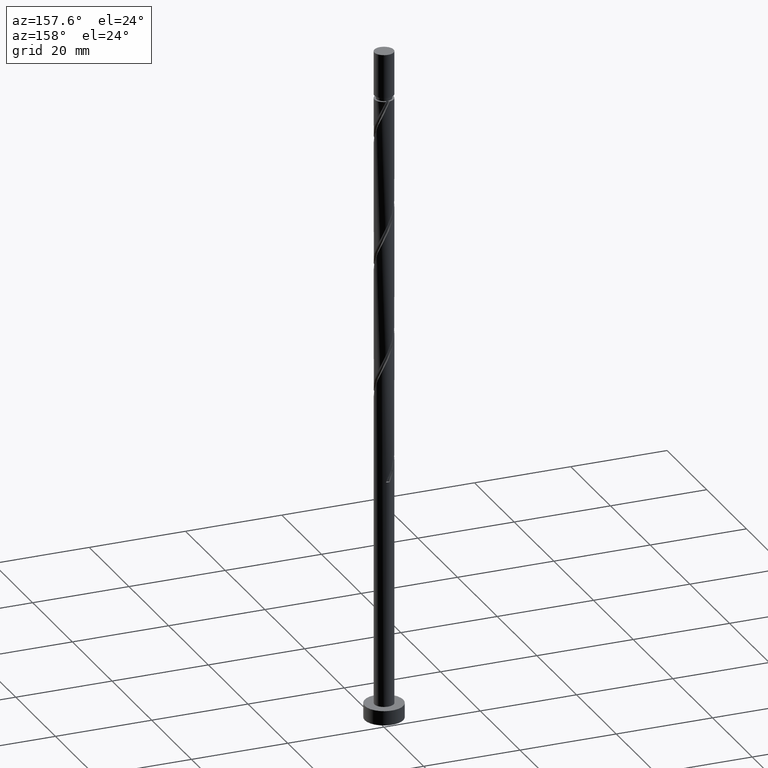
[diagram: clean part render]
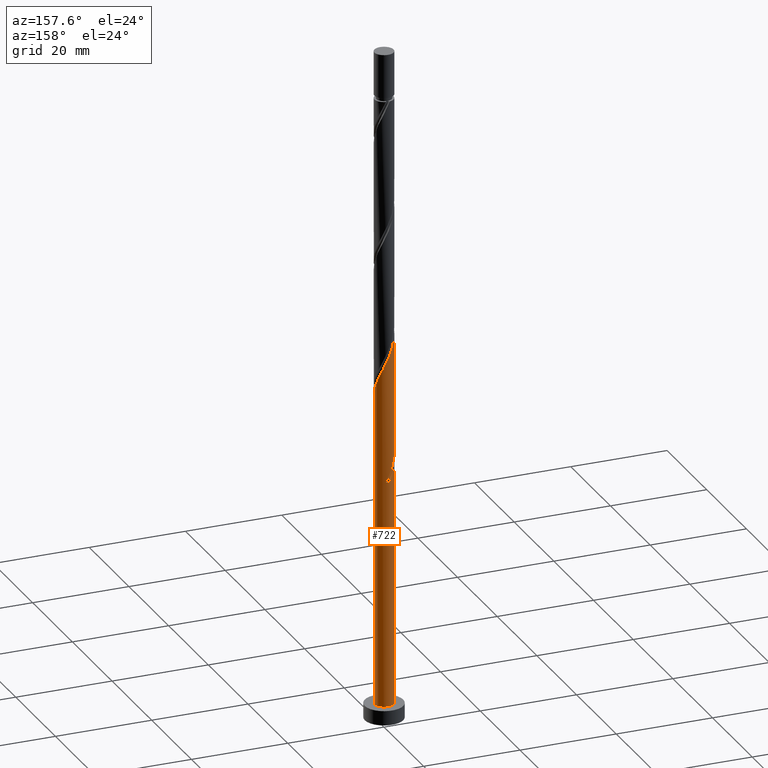
[diagram: same view with one face highlighted and labeled with its STEP entity id]
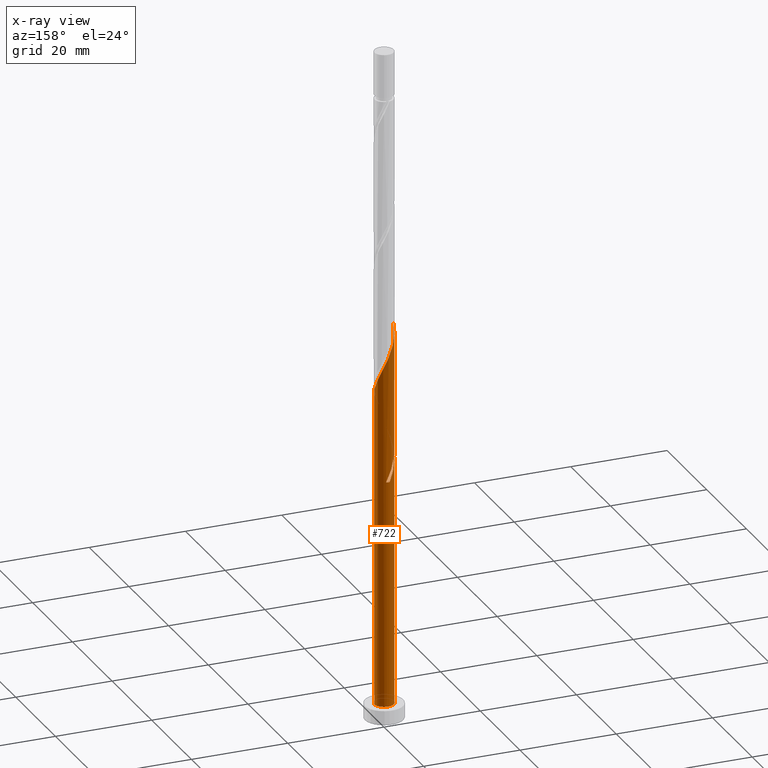
[diagram: x-ray of the same camera — body ghosted, the highlighted face saturated]
A machine part, auxiliary view. The second image highlights one B-rep face of the part: STEP entity #722.
The next image is the same camera in x-ray: the body ghosted, the highlighted face saturated — about 0% of this face is hidden behind the body in this view.
In plain terms, the highlighted cylindrical surface (edge-blend (fillet) strip) has radius 2 mm, axis along (-0, -0, -1).
Its self-contained STEP definition (entity closure, byte-faithful):
#4 =( BOUNDED_CURVE ( )  B_SPLINE_CURVE ( 2, ( #318, #723, #715, #965, #76, #311, #577, #948, #1609, #584, #1106, #68, #184, #1100, #192 ),
 .UNSPECIFIED., .F., .F. ) 
 B_SPLINE_CURVE_WITH_KNOTS ( ( 3, 2, 2, 2, 2, 2, 2, 3 ),
 ( 0.9295252162417513286, 0.9318181818181817677, 0.9431818181818182323, 0.9545454545454545858, 0.9659090909090909394, 0.9772727272727272929, 0.9886363636363636465, 1.000000000000000000 ),
 .UNSPECIFIED. ) 
 CURVE ( )  GEOMETRIC_REPRESENTATION_ITEM ( )  RATIONAL_B_SPLINE_CURVE ( ( 0.9061101570135567940, 0.9072237824201390133, 0.9090909090909164991, 0.8998376744372188485, 0.9090909090909164991, 0.8998376744372188485, 0.9090909090909164991, 0.8998376744372188485, 0.9090909090909164991, 0.8998376744372188485, 0.9090909090909164991, 0.8998376744372188485, 0.9090909090909164991, 0.8998376744372188485, 0.9090909090909164991 ) ) 
 REPRESENTATION_ITEM ( '' )  );
#25 = EDGE_LOOP ( 'NONE', ( #879, #756, #924, #118, #889, #501, #401, #1654 ) ) ;
#60 = DIRECTION ( 'NONE',  ( -1.000000000000000000, 0.000000000000000000, 0.000000000000000000 ) ) ;
#68 = CARTESIAN_POINT ( 'NONE',  ( -0.4568343776401055933, 1.968245701812301407, 51.96888811070799363 ) ) ;
#76 = CARTESIAN_POINT ( 'NONE',  ( -1.883409435608316418, 0.6728810428757542317, 56.21131235313221453 ) ) ;
#79 = CARTESIAN_POINT ( 'NONE',  ( -2.000000000000000444, 1.884559408640555319E-15, 57.66682743849373338 ) ) ;
#94 = CARTESIAN_POINT ( 'NONE',  ( 1.980155124014553403, 0.4020876473299550558, 70.15070629252615220 ) ) ;
#102 = CARTESIAN_POINT ( 'NONE',  ( -2.000000000000004441, 0.2290578547702427359, 82.14862519358732129 ) ) ;
#105 = AXIS2_PLACEMENT_3D ( 'NONE', #1426, #519, #1142 ) ;
#118 = ORIENTED_EDGE ( 'NONE', *, *, #565, .F. ) ;
#184 = CARTESIAN_POINT ( 'NONE',  ( -0.1703224295138024702, 1.992734370156875157, 51.36282750464737745 ) ) ;
#192 = CARTESIAN_POINT ( 'NONE',  ( 0.3979949748426487299, 1.959999999999999964, 50.15070629252617351 ) ) ;
#212 = CARTESIAN_POINT ( 'NONE',  ( -1.188337955536408641, 1.634179211325360814, 51.96888811070798653 ) ) ;
#217 = CARTESIAN_POINT ( 'NONE',  ( -1.948211798543802997, 0.4521844623765087778, 81.66585780767769620 ) ) ;
#220 =( BOUNDED_CURVE ( )  B_SPLINE_CURVE ( 2, ( #337, #853, #1236, #212, #727, #1620, #468, #1496, #860, #669, #693 ),
 .UNSPECIFIED., .F., .F. ) 
 B_SPLINE_CURVE_WITH_KNOTS ( ( 3, 2, 2, 2, 2, 3 ),
 ( 0.000000000000000000, 0.01136363636363635354, 0.02272727272727270709, 0.03409090909090906063, 0.04545454545454541417, 0.05452521624175125231 ),
 .UNSPECIFIED. ) 
 CURVE ( )  GEOMETRIC_REPRESENTATION_ITEM ( )  RATIONAL_B_SPLINE_CURVE ( ( 0.9090909090909219392, 0.8998376744372241776, 0.9090909090909219392, 0.8998376744372241776, 0.9090909090909219392, 0.8998376744372241776, 0.9090909090909219392, 0.8998376744372241776, 0.9090909090909219392, 0.9017048011080017744, 0.9061101570135622341 ) ) 
 REPRESENTATION_ITEM ( '' )  );
#224 = CARTESIAN_POINT ( 'NONE',  ( -1.741900447066340618, 0.9827425057002951991, 80.45373659555643542 ) ) ;
#251 = VERTEX_POINT ( 'NONE', #991 ) ;
#277 = VERTEX_POINT ( 'NONE', #1245 ) ;
#300 = DIRECTION ( 'NONE',  ( -0.000000000000000000, -0.000000000000000000, -1.000000000000000000 ) ) ;
#311 = CARTESIAN_POINT ( 'NONE',  ( -1.786663747202082320, 0.9436744384215540737, 55.60525174707161966 ) ) ;
#318 = CARTESIAN_POINT ( 'NONE',  ( -2.000000000000000444, 1.884559408640555319E-15, 57.66682743849373338 ) ) ;
#337 = CARTESIAN_POINT ( 'NONE',  ( -0.3979949748426480083, 1.960000000000002185, 50.15070629252618062 ) ) ;
#344 = CARTESIAN_POINT ( 'NONE',  ( 2.000000000000002220, 0.05755105304764610019, 69.42334981794350313 ) ) ;
#391 = EDGE_CURVE ( 'NONE', #1026, #251, #1032, .T. ) ;
#401 = ORIENTED_EDGE ( 'NONE', *, *, #844, .F. ) ;
#416 = CARTESIAN_POINT ( 'NONE',  ( -2.000000000000000000, 0.000000000000000000, 3.000000000000000000 ) ) ;
#422 = CARTESIAN_POINT ( 'NONE',  ( -0.3979949748426480083, 1.960000000000002185, 50.15070629252617351 ) ) ;
#468 = CARTESIAN_POINT ( 'NONE',  ( -1.741900447066340618, 0.9827425057002951991, 53.78706992888979244 ) ) ;
#475 = CARTESIAN_POINT ( 'NONE',  ( 0.1703224295138031641, 1.992734370156877821, 75.60525174707161966 ) ) ;
#485 = CARTESIAN_POINT ( 'NONE',  ( 1.220637884402355988, 1.584311571365226046, 73.18100932282916915 ) ) ;
#494 = EDGE_CURVE ( 'NONE', #500, #1384, #220, .T. ) ;
#495 = CARTESIAN_POINT ( 'NONE',  ( -0.1161895186125001117, 2.017223038501450461, 76.21131235313224295 ) ) ;
#500 = VERTEX_POINT ( 'NONE', #422 ) ;
#501 = ORIENTED_EDGE ( 'NONE', *, *, #970, .T. ) ;
#514 = VERTEX_POINT ( 'NONE', #416 ) ;
#519 = DIRECTION ( 'NONE',  ( -0.000000000000000000, -0.000000000000000000, -1.000000000000000000 ) ) ;
#565 = EDGE_CURVE ( 'NONE', #1384, #514, #1190, .T. ) ;
#577 = CARTESIAN_POINT ( 'NONE',  ( -1.617545623245911779, 1.176242388590887256, 54.99919114101101769 ) ) ;
#584 = CARTESIAN_POINT ( 'NONE',  ( -0.9928482695149674075, 1.759812803970227879, 53.18100932282921178 ) ) ;
#594 = CARTESIAN_POINT ( 'NONE',  ( -1.600603406160406639, 1.233189980288574183, 79.84767598949586898 ) ) ;
#603 = CARTESIAN_POINT ( 'NONE',  ( 1.786663747202085206, 0.9436744384215541848, 71.36282750464738456 ) ) ;
#626 = CARTESIAN_POINT ( 'NONE',  ( 1.996690616564942733, 0.1150068768444765244, 69.54464568646558575 ) ) ;
#628 = DIRECTION ( 'NONE',  ( 1.000000000000000000, 0.000000000000000000, 0.000000000000000000 ) ) ;
#630 = CARTESIAN_POINT ( 'NONE',  ( 2.000000000000000000, 2.449293598294706414E-16, 3.000000000000000000 ) ) ;
#669 = CARTESIAN_POINT ( 'NONE',  ( -2.000000000000002665, 0.2290578547702473156, 55.48195852692062857 ) ) ;
#681 = VECTOR ( 'NONE', #1340, 1000.000000000000000 ) ;
#693 = CARTESIAN_POINT ( 'NONE',  ( -2.000000000000002665, -1.376027504721667048E-15, 55.96791847989193514 ) ) ;
#699 = LINE ( 'NONE', #1209, #1187 ) ;
#715 = CARTESIAN_POINT ( 'NONE',  ( -1.996690616564939846, 0.1150068768444770934, 57.42343356525345399 ) ) ;
#718 = CARTESIAN_POINT ( 'NONE',  ( 2.000000000000000000, 2.449293598294706414E-16, 140.0000000000000000 ) ) ;
#722 = ADVANCED_FACE ( 'NONE', ( #1536 ), #1010, .T. ) ;
#723 = CARTESIAN_POINT ( 'NONE',  ( -2.000000000000000444, 0.05755105304764599611, 57.54472943377551530 ) ) ;
#727 = CARTESIAN_POINT ( 'NONE',  ( -1.394470680848407307, 1.433684595806968165, 52.57494871676860271 ) ) ;
#739 = CARTESIAN_POINT ( 'NONE',  ( -1.883197487972274153, 0.7322950311120157707, 81.05979720161708713 ) ) ;
#740 = DIRECTION ( 'NONE',  ( 0.000000000000000000, 0.000000000000000000, 1.000000000000000000 ) ) ;
#751 = CARTESIAN_POINT ( 'NONE',  ( -0.6798004310727967514, 1.902776961498554353, 77.42343356525344689 ) ) ;
#756 = ORIENTED_EDGE ( 'NONE', *, *, #1449, .T. ) ;
#776 = VERTEX_POINT ( 'NONE', #630 ) ;
#829 = CIRCLE ( 'NONE', #1455, 2.000000000000000000 ) ;
#844 = EDGE_CURVE ( 'NONE', #1411, #277, #4, .T. ) ;
#853 = CARTESIAN_POINT ( 'NONE',  ( -0.6798004310727967514, 1.902776961498554353, 50.75676689858678259 ) ) ;
#860 = CARTESIAN_POINT ( 'NONE',  ( -1.948211798543802997, 0.4521844623765087778, 54.99919114101103190 ) ) ;
#875 = CARTESIAN_POINT ( 'NONE',  ( 0.4568343776401065925, 1.968245701812303405, 74.99919114101103901 ) ) ;
#879 = ORIENTED_EDGE ( 'NONE', *, *, #391, .F. ) ;
#889 = ORIENTED_EDGE ( 'NONE', *, *, #494, .F. ) ;
#924 = ORIENTED_EDGE ( 'NONE', *, *, #1271, .T. ) ;
#948 = CARTESIAN_POINT ( 'NONE',  ( -1.448427499289741460, 1.408810338760219993, 54.39313053495040862 ) ) ;
#962 = AXIS2_PLACEMENT_3D ( 'NONE', #1212, #1592, #60 ) ;
#965 = CARTESIAN_POINT ( 'NONE',  ( -1.980155124014551182, 0.4020876473299552778, 56.81737295919283781 ) ) ;
#970 = EDGE_CURVE ( 'NONE', #500, #277, #1476, .T. ) ;
#971 = DIRECTION ( 'NONE',  ( -0.000000000000000000, -0.000000000000000000, -1.000000000000000000 ) ) ;
#991 = CARTESIAN_POINT ( 'NONE',  ( -2.000000000000002665, -1.376027504721667048E-15, 82.63458514655862075 ) ) ;
#997 = CARTESIAN_POINT ( 'NONE',  ( -1.188337955536408641, 1.634179211325360814, 78.63555477737463661 ) ) ;
#1010 = CYLINDRICAL_SURFACE ( 'NONE', #105, 2.000000000000000000 ) ;
#1026 = VERTEX_POINT ( 'NONE', #1462 ) ;
#1032 =( BOUNDED_CURVE ( )  B_SPLINE_CURVE ( 2, ( #1373, #344, #626, #94, #1638, #603, #1109, #1627, #485, #1647, #1137, #875, #475, #495, #1380, #751, #1366, #997, #1249, #594, #224, #739, #217, #102, #1488 ),
 .UNSPECIFIED., .F., .F. ) 
 B_SPLINE_CURVE_WITH_KNOTS ( ( 3, 2, 2, 2, 2, 2, 2, 2, 2, 2, 2, 2, 3 ),
 ( 0.1795252162417513564, 0.1818181818181817677, 0.1931818181818182323, 0.2045454545454545858, 0.2159090909090909394, 0.2272727272727272929, 0.2386363636363636465, 0.2500000000000000000, 0.2613636363636363535, 0.2727272727272727071, 0.2840909090909090606, 0.2954545454545454142, 0.3045252162417514397 ),
 .UNSPECIFIED. ) 
 CURVE ( )  GEOMETRIC_REPRESENTATION_ITEM ( )  RATIONAL_B_SPLINE_CURVE ( ( 0.9061101570135624561, 0.9072237824201445644, 0.9090909090909219392, 0.8998376744372241776, 0.9090909090909219392, 0.8998376744372241776, 0.9090909090909219392, 0.8998376744372241776, 0.9090909090909219392, 0.8998376744372241776, 0.9090909090909219392, 0.8998376744372241776, 0.9090909090909219392, 0.8998376744372241776, 0.9090909090909219392, 0.8998376744372241776, 0.9090909090909219392, 0.8998376744372241776, 0.9090909090909219392, 0.8998376744372241776, 0.9090909090909219392, 0.8998376744372241776, 0.9090909090909219392, 0.9017048011080015524, 0.9061101570135624561 ) ) 
 REPRESENTATION_ITEM ( '' )  );
#1043 = VECTOR ( 'NONE', #300, 1000.000000000000000 ) ;
#1052 = CARTESIAN_POINT ( 'NONE',  ( -2.000000000000000000, 0.000000000000000000, 140.0000000000000000 ) ) ;
#1062 = CARTESIAN_POINT ( 'NONE',  ( -2.000000000000002665, -1.376027504721667048E-15, 55.96791847989194224 ) ) ;
#1100 = CARTESIAN_POINT ( 'NONE',  ( 0.1161895186125005419, 2.017223038501447796, 50.75676689858677548 ) ) ;
#1106 = CARTESIAN_POINT ( 'NONE',  ( -0.7248413235775362784, 1.864029252891264310, 52.57494871676860271 ) ) ;
#1109 = CARTESIAN_POINT ( 'NONE',  ( 1.617545623245914443, 1.176242388590887700, 71.96888811070799363 ) ) ;
#1137 = CARTESIAN_POINT ( 'NONE',  ( 0.7248413235775371666, 1.864029252891267197, 74.39313053495040151 ) ) ;
#1140 = EDGE_CURVE ( 'NONE', #251, #1411, #699, .T. ) ;
#1142 = DIRECTION ( 'NONE',  ( -1.000000000000000000, 0.000000000000000000, 0.000000000000000000 ) ) ;
#1187 = VECTOR ( 'NONE', #971, 1000.000000000000000 ) ;
#1190 = LINE ( 'NONE', #1052, #1043 ) ;
#1209 = CARTESIAN_POINT ( 'NONE',  ( -2.000000000000000000, 0.000000000000000000, 140.0000000000000000 ) ) ;
#1212 = CARTESIAN_POINT ( 'NONE',  ( 0.000000000000000000, 0.000000000000000000, 50.15070629252617351 ) ) ;
#1236 = CARTESIAN_POINT ( 'NONE',  ( -0.9340691933046029183, 1.768478086411957806, 51.36282750464739166 ) ) ;
#1245 = CARTESIAN_POINT ( 'NONE',  ( 0.3979949748426487299, 1.959999999999999964, 50.15070629252617351 ) ) ;
#1249 = CARTESIAN_POINT ( 'NONE',  ( -1.394470680848407307, 1.433684595806968165, 79.24161538343527411 ) ) ;
#1271 = EDGE_CURVE ( 'NONE', #776, #514, #829, .T. ) ;
#1340 = DIRECTION ( 'NONE',  ( -0.000000000000000000, -0.000000000000000000, -1.000000000000000000 ) ) ;
#1366 = CARTESIAN_POINT ( 'NONE',  ( -0.9340691933046029183, 1.768478086411957806, 78.02949417131404175 ) ) ;
#1373 = CARTESIAN_POINT ( 'NONE',  ( 2.000000000000002665, 1.278808170148940589E-15, 69.30125181322529215 ) ) ;
#1380 = CARTESIAN_POINT ( 'NONE',  ( -0.3979949748426481193, 1.960000000000002851, 76.81737295919285202 ) ) ;
#1384 = VERTEX_POINT ( 'NONE', #1062 ) ;
#1391 = CARTESIAN_POINT ( 'NONE',  ( 0.000000000000000000, 0.000000000000000000, 3.000000000000000000 ) ) ;
#1411 = VERTEX_POINT ( 'NONE', #79 ) ;
#1426 = CARTESIAN_POINT ( 'NONE',  ( 0.000000000000000000, 0.000000000000000000, 140.0000000000000000 ) ) ;
#1449 = EDGE_CURVE ( 'NONE', #1026, #776, #1611, .T. ) ;
#1455 = AXIS2_PLACEMENT_3D ( 'NONE', #1391, #740, #628 ) ;
#1462 = CARTESIAN_POINT ( 'NONE',  ( 2.000000000000002665, 1.278808170148940589E-15, 69.30125181322529215 ) ) ;
#1476 = CIRCLE ( 'NONE', #962, 2.000000000000000000 ) ;
#1488 = CARTESIAN_POINT ( 'NONE',  ( -2.000000000000002665, -1.376027504721667048E-15, 82.63458514655862075 ) ) ;
#1496 = CARTESIAN_POINT ( 'NONE',  ( -1.883197487972274153, 0.7322950311120157707, 54.39313053495040862 ) ) ;
#1536 = FACE_OUTER_BOUND ( 'NONE', #25, .T. ) ;
#1592 = DIRECTION ( 'NONE',  ( 0.000000000000000000, -0.000000000000000000, -1.000000000000000000 ) ) ;
#1609 = CARTESIAN_POINT ( 'NONE',  ( -1.220637884402354434, 1.584311571365224047, 53.78706992888979244 ) ) ;
#1611 = LINE ( 'NONE', #718, #681 ) ;
#1620 = CARTESIAN_POINT ( 'NONE',  ( -1.600603406160406639, 1.233189980288574183, 53.18100932282920468 ) ) ;
#1627 = CARTESIAN_POINT ( 'NONE',  ( 1.448427499289744569, 1.408810338760220437, 72.57494871676858850 ) ) ;
#1638 = CARTESIAN_POINT ( 'NONE',  ( 1.883409435608319527, 0.6728810428757547868, 70.75676689858678969 ) ) ;
#1647 = CARTESIAN_POINT ( 'NONE',  ( 0.9928482695149681847, 1.759812803970230322, 73.78706992888979244 ) ) ;
#1654 = ORIENTED_EDGE ( 'NONE', *, *, #1140, .F. ) ;